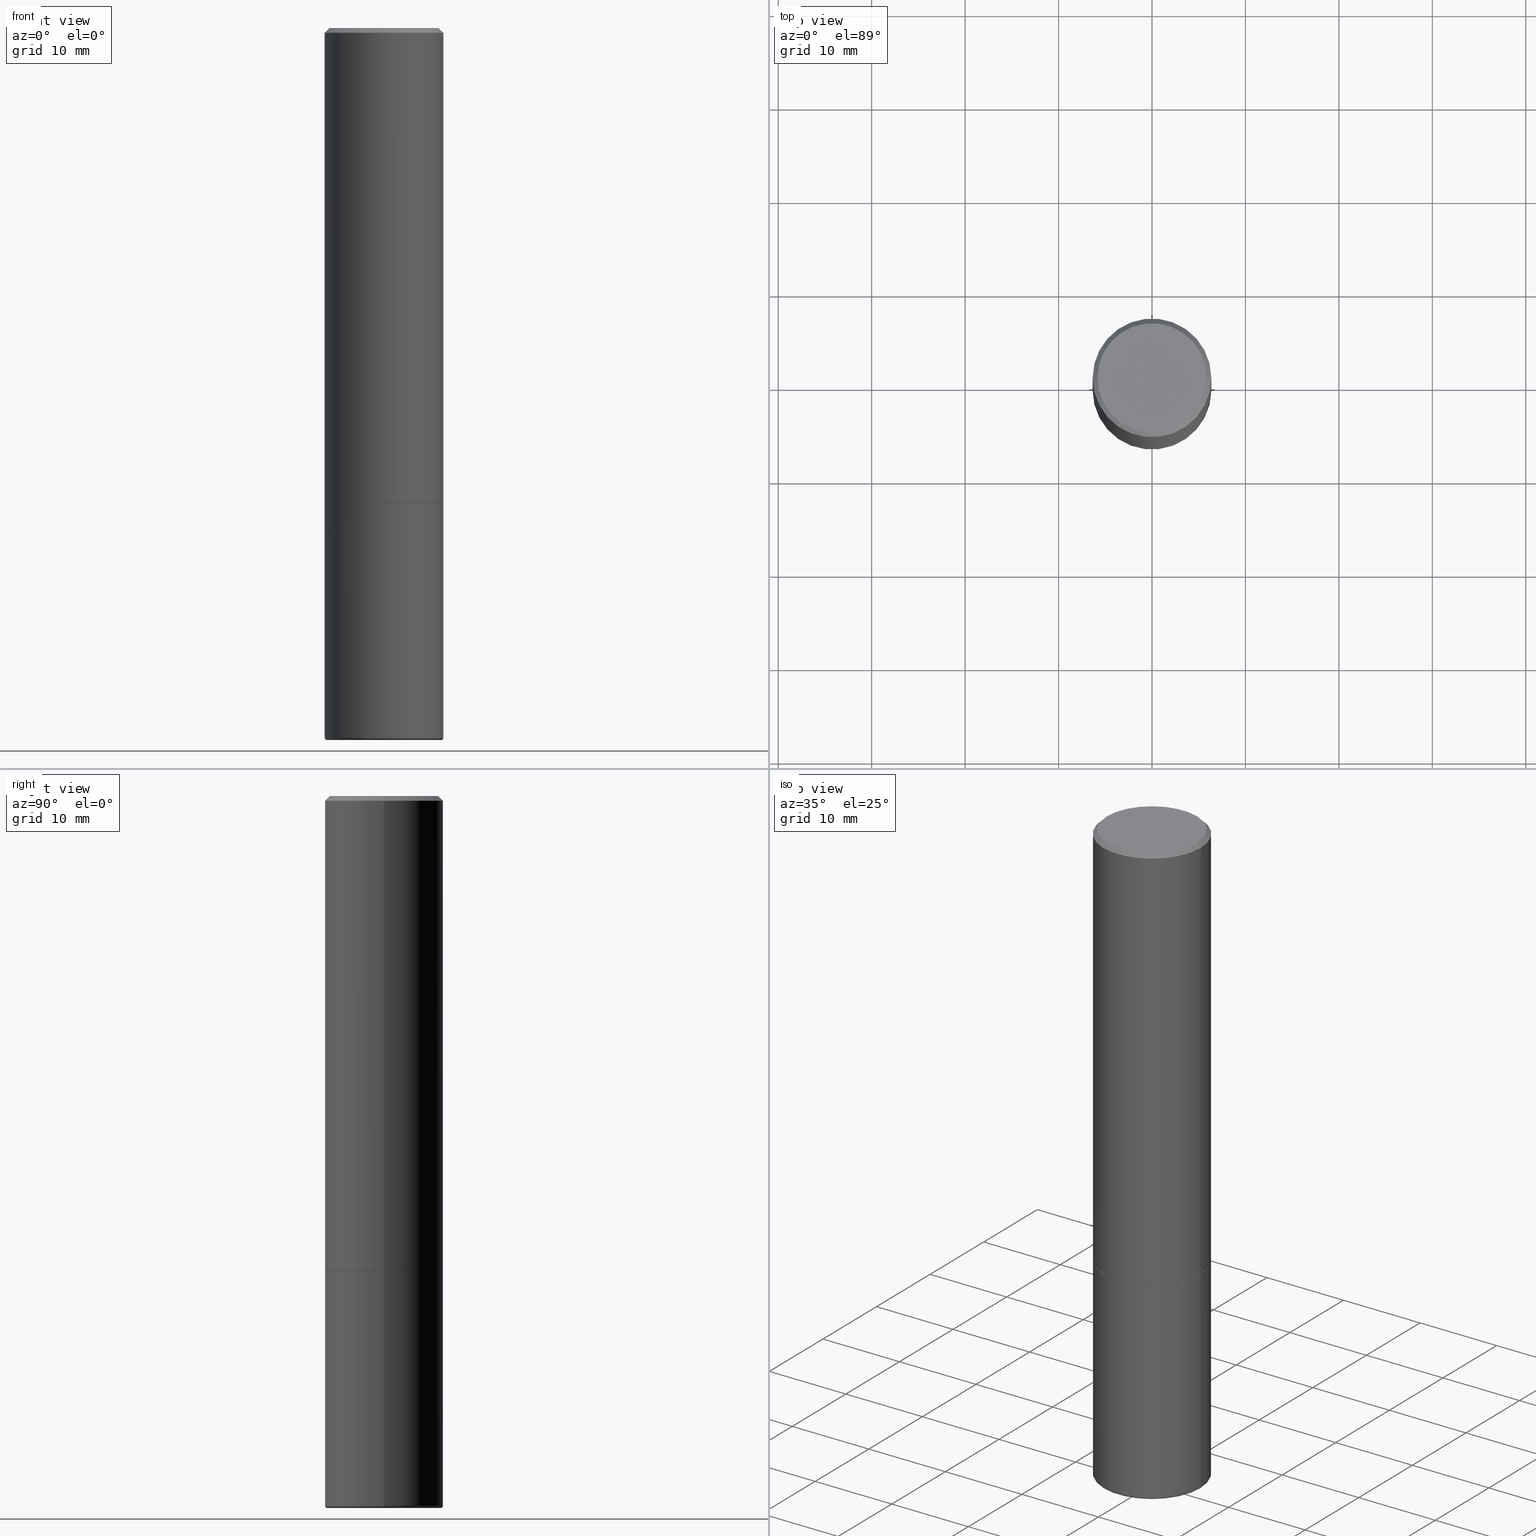
[diagram: canonical four-view strip — front | top / right | iso, engineering-drawing reading convention]
A machine part, canonical four-view strip (front | top / right | iso — engineering-drawing reading convention). The complete STEP part file that produces these views, byte-faithful:
ISO-10303-21;
HEADER;
FILE_DESCRIPTION (( 'STEP AP203' ),
    '1' );
FILE_NAME ('38837.STEP',
    '2024-03-03T16:03:18',
    ( '' ),
    ( '' ),
    'SwSTEP 2.0',
    'SolidWorks 2023',
    '' );
FILE_SCHEMA (( 'CONFIG_CONTROL_DESIGN' ));
ENDSEC;

DATA;
#1 =( NAMED_UNIT ( * ) SI_UNIT ( $, .STERADIAN. ) SOLID_ANGLE_UNIT ( ) );
#2 = CARTESIAN_POINT ( 'NONE',  ( 0.000000000000000000, 0.000000000000000000, 0.000000000000000000 ) ) ;
#3 = PERSON_AND_ORGANIZATION_ROLE ( 'creator' ) ;
#4 = ADVANCED_FACE ( 'NONE', ( #67 ), #99, .T. ) ;
#5 = FACE_OUTER_BOUND ( 'NONE', #326, .T. ) ;
#6 = ADVANCED_FACE ( 'NONE', ( #5 ), #322, .T. ) ;
#7 = APPROVAL_ROLE ( '' ) ;
#8 = AXIS2_PLACEMENT_3D ( 'NONE', #212, #208, #338 ) ;
#9 = AXIS2_PLACEMENT_3D ( 'NONE', #222, #315, #26 ) ;
#10 = APPROVAL_ROLE ( '' ) ;
#11 = UNCERTAINTY_MEASURE_WITH_UNIT (LENGTH_MEASURE( 1.000000000000000082E-05 ), #250, 'distance_accuracy_value', 'NONE');
#12 = DIRECTION ( 'NONE',  ( 1.000000000000000000, -6.982962677686267499E-15, 4.875813741439101456E-29 ) ) ;
#13 = DIRECTION ( 'NONE',  ( -1.000000000000000000, 7.105427357600978193E-15, 0.000000000000000000 ) ) ;
#14 = CLOSED_SHELL ( 'NONE', ( #387, #261, #176, #141, #330, #268, #17, #123 ) ) ;
#15 = APPROVAL_PERSON_ORGANIZATION ( #361, #321, #201 ) ;
#16 = DIRECTION ( 'NONE',  ( 1.000000000000000000, -6.982962677686284854E-15, 0.000000000000000000 ) ) ;
#17 = ADVANCED_FACE ( 'NONE', ( #134 ), #356, .F. ) ;
#18 = DIRECTION ( 'NONE',  ( -2.445468806185136597E-29, 3.491481338843145583E-15, 1.000000000000000000 ) ) ;
#19 = DIRECTION ( 'NONE',  ( -0.7071067811865467956, 2.468850131082249172E-15, -0.7071067811865482389 ) ) ;
#20 = CONICAL_SURFACE ( 'NONE', #104, 0.2500000000000000000, 0.7853981633974472798 ) ;
#21 = ORIENTED_EDGE ( 'NONE', *, *, #120, .T. ) ;
#22 = DIRECTION ( 'NONE',  ( 0.7071067811866078578, -2.468850131082888544E-15, 0.7071067811864871766 ) ) ;
#23 = ORIENTED_EDGE ( 'NONE', *, *, #77, .F. ) ;
#24 = DIRECTION ( 'NONE',  ( -2.445468806185136597E-29, 3.491481338843145583E-15, 1.000000000000000000 ) ) ;
#25 = VERTEX_POINT ( 'NONE', #194 ) ;
#26 = DIRECTION ( 'NONE',  ( 1.000000000000000000, -6.982962677686266711E-15, 0.000000000000000000 ) ) ;
#27 = ORIENTED_EDGE ( 'NONE', *, *, #206, .F. ) ;
#28 = CIRCLE ( 'NONE', #110, 0.2400000000000000466 ) ;
#29 = ADVANCED_FACE ( 'NONE', ( #37 ), #286, .F. ) ;
#30 = ORIENTED_EDGE ( 'NONE', *, *, #92, .T. ) ;
#31 = CARTESIAN_POINT ( 'NONE',  ( -0.2500000000000000000, 1.675911042644703577E-15, -0.02000000000000005593 ) ) ;
#32 = EDGE_CURVE ( 'NONE', #94, #155, #391, .T. ) ;
#33 = CARTESIAN_POINT ( 'NONE',  ( 1.210550456377282398E-28, -3.644824032368776532E-15, -2.999999999999999556 ) ) ;
#34 = DIRECTION ( 'NONE',  ( 1.000000000000000000, -6.982962677686266711E-15, 0.000000000000000000 ) ) ;
#35 = COORDINATED_UNIVERSAL_TIME_OFFSET ( 5, 0, .BEHIND. ) ;
#36 = VECTOR ( 'NONE', #22, 39.37007874015748143 ) ;
#37 = FACE_OUTER_BOUND ( 'NONE', #346, .T. ) ;
#38 = DATE_AND_TIME ( #163, #231 ) ;
#39 = DIRECTION ( 'NONE',  ( -2.438088387897960049E-29, 3.491481338843145188E-15, 1.000000000000000000 ) ) ;
#40 = DATE_AND_TIME ( #140, #73 ) ;
#41 = CC_DESIGN_DATE_AND_TIME_ASSIGNMENT ( #291, #232, ( #297 ) ) ;
#42 = EDGE_CURVE ( 'NONE', #319, #191, #365, .T. ) ;
#43 = CARTESIAN_POINT ( 'NONE',  ( 1.606081415867840870E-15, 0.2299999999999999267, -7.795638892383710465E-16 ) ) ;
#44 = CARTESIAN_POINT ( 'NONE',  ( 0.2400000000000000466, -1.215035505917413973E-14, -2.999999999999999556 ) ) ;
#45 = AXIS2_PLACEMENT_3D ( 'NONE', #418, #259, #168 ) ;
#46 = LOCAL_TIME ( 11, 3, 18.00000000000000000, #327 ) ;
#47 = LINE ( 'NONE', #235, #115 ) ;
#48 = DIRECTION ( 'NONE',  ( 7.105427357601001859E-15, 1.000000000000000000, -3.491481338843145583E-15 ) ) ;
#49 = CC_DESIGN_PERSON_AND_ORGANIZATION_ASSIGNMENT ( #107, #68, ( #215 ) ) ;
#50 = DIRECTION ( 'NONE',  ( 1.000000000000000000, -6.982962677686269077E-15, 4.883557194083114022E-29 ) ) ;
#51 = ORIENTED_EDGE ( 'NONE', *, *, #211, .F. ) ;
#52 = DIRECTION ( 'NONE',  ( -2.445468806185136597E-29, 3.491481338843145583E-15, 1.000000000000000000 ) ) ;
#53 = ADVANCED_FACE ( 'NONE', ( #164 ), #290, .T. ) ;
#54 = ORIENTED_EDGE ( 'NONE', *, *, #355, .T. ) ;
#55 = CARTESIAN_POINT ( 'NONE',  ( 0.2489999999999999991, -8.721720384430172617E-15, -2.000000000000000444 ) ) ;
#56 = VERTEX_POINT ( 'NONE', #173 ) ;
#57 = APPROVAL ( #294, 'UNSPECIFIED' ) ;
#58 = ORIENTED_EDGE ( 'NONE', *, *, #200, .F. ) ;
#59 = AXIS2_PLACEMENT_3D ( 'NONE', #33, #328, #227 ) ;
#60 = ORGANIZATION ( 'UNSPECIFIED', 'UNSPECIFIED', '' ) ;
#61 = CYLINDRICAL_SURFACE ( 'NONE', #188, 0.2500000000000001110 ) ;
#62 = EDGE_CURVE ( 'NONE', #129, #415, #178, .T. ) ;
#63 = ORIENTED_EDGE ( 'NONE', *, *, #96, .F. ) ;
#64 = DATE_AND_TIME ( #226, #46 ) ;
#65 = ORIENTED_EDGE ( 'NONE', *, *, #62, .T. ) ;
#66 = PERSON_AND_ORGANIZATION ( #296, #60 ) ;
#67 = FACE_OUTER_BOUND ( 'NONE', #243, .T. ) ;
#68 = PERSON_AND_ORGANIZATION_ROLE ( 'design_supplier' ) ;
#69 = ORIENTED_EDGE ( 'NONE', *, *, #193, .T. ) ;
#70 = APPROVAL_DATE_TIME ( #228, #408 ) ;
#71 = COORDINATED_UNIVERSAL_TIME_OFFSET ( 5, 0, .BEHIND. ) ;
#72 = AXIS2_PLACEMENT_3D ( 'NONE', #266, #402, #368 ) ;
#73 = LOCAL_TIME ( 11, 3, 18.00000000000000000, #357 ) ;
#74 = LINE ( 'NONE', #147, #102 ) ;
#75 = EDGE_CURVE ( 'NONE', #415, #25, #280, .T. ) ;
#76 = CARTESIAN_POINT ( 'NONE',  ( 7.311951730493558245E-29, -1.043952920314100628E-14, -2.990000000000000213 ) ) ;
#77 = EDGE_CURVE ( 'NONE', #160, #191, #74, .T. ) ;
#78 = MANIFOLD_SOLID_BREP ( 'Body-Move/Copy2[1]', #245 ) ;
#79 = DIRECTION ( 'NONE',  ( -1.000000000000000000, 6.982962677686266711E-15, 0.000000000000000000 ) ) ;
#80 = CC_DESIGN_PERSON_AND_ORGANIZATION_ASSIGNMENT ( #323, #3, ( #314 ) ) ;
#81 = CARTESIAN_POINT ( 'NONE',  ( -0.2489999999999999991, -5.208412811295419307E-15, -2.000000000000000444 ) ) ;
#82 = CARTESIAN_POINT ( 'NONE',  ( -1.148236555768741665E-45, 1.639377487418492057E-31, 4.695363739110452099E-17 ) ) ;
#83 = ORIENTED_EDGE ( 'NONE', *, *, #77, .T. ) ;
#84 = FACE_OUTER_BOUND ( 'NONE', #241, .T. ) ;
#85 = ADVANCED_FACE ( 'NONE', ( #205 ), #393, .T. ) ;
#86 = CIRCLE ( 'NONE', #144, 0.2500000000000002220 ) ;
#87 = ORIENTED_EDGE ( 'NONE', *, *, #200, .T. ) ;
#88 = CARTESIAN_POINT ( 'NONE',  ( 0.2489999999999999991, -8.721720384430172617E-15, -2.000000000000000444 ) ) ;
#89 = VERTEX_POINT ( 'NONE', #406 ) ;
#90 = CARTESIAN_POINT ( 'NONE',  ( -0.2500000000000000000, 1.776356839400250465E-15, -1.229733772563726445E-29 ) ) ;
#91 = ORIENTED_EDGE ( 'NONE', *, *, #75, .T. ) ;
#92 = EDGE_CURVE ( 'NONE', #375, #189, #262, .T. ) ;
#93 = DIRECTION ( 'NONE',  ( -0.7071067811866078578, 7.493145998870571886E-15, 0.7071067811864871766 ) ) ;
#94 = VERTEX_POINT ( 'NONE', #334 ) ;
#95 = DIRECTION ( 'NONE',  ( -2.445468806185136597E-29, 3.491481338843145583E-15, 1.000000000000000000 ) ) ;
#96 = EDGE_CURVE ( 'NONE', #94, #25, #187, .T. ) ;
#97 = ORIENTED_EDGE ( 'NONE', *, *, #206, .T. ) ;
#98 = MECHANICAL_CONTEXT ( 'NONE', #310, 'mechanical' ) ;
#99 = CYLINDRICAL_SURFACE ( 'NONE', #405, 0.2500000000000000000 ) ;
#100 = APPROVAL_STATUS ( 'not_yet_approved' ) ;
#101 = CARTESIAN_POINT ( 'NONE',  ( 0.2500000000000000000, -1.745740669421566678E-15, 1.219044193948983948E-29 ) ) ;
#102 = VECTOR ( 'NONE', #400, 39.37007874015748143 ) ;
#103 = PERSON_AND_ORGANIZATION ( #296, #60 ) ;
#104 = AXIS2_PLACEMENT_3D ( 'NONE', #265, #145, #79 ) ;
#105 = PRODUCT_RELATED_PRODUCT_CATEGORY ( 'detail', '', ( #359 ) ) ;
#106 = PERSON_AND_ORGANIZATION ( #296, #60 ) ;
#107 = PERSON_AND_ORGANIZATION ( #296, #60 ) ;
#108 = EDGE_CURVE ( 'NONE', #155, #56, #383, .T. ) ;
#109 = CARTESIAN_POINT ( 'NONE',  ( -0.2399999999999999911, -8.734226637316765899E-15, -2.990000000000000213 ) ) ;
#110 = AXIS2_PLACEMENT_3D ( 'NONE', #156, #275, #242 ) ;
#111 = ORIENTED_EDGE ( 'NONE', *, *, #180, .F. ) ;
#112 = CARTESIAN_POINT ( 'NONE',  ( 4.890937612370273754E-29, -6.982962677686291954E-15, -2.000000000000000444 ) ) ;
#113 = DIRECTION ( 'NONE',  ( -2.445468806185136597E-29, 3.491481338843145583E-15, 1.000000000000000000 ) ) ;
#114 = DIRECTION ( 'NONE',  ( 2.438088387897960049E-29, -3.491481338843145188E-15, -1.000000000000000000 ) ) ;
#115 = VECTOR ( 'NONE', #143, 39.37007874015748143 ) ;
#116 = CC_DESIGN_APPROVAL ( #408, ( #297 ) ) ;
#117 = FACE_OUTER_BOUND ( 'NONE', #218, .T. ) ;
#118 = ORIENTED_EDGE ( 'NONE', *, *, #180, .T. ) ;
#119 = CARTESIAN_POINT ( 'NONE',  ( 0.2500000000000000000, -1.784954126219746189E-15, -0.02000000000000005593 ) ) ;
#120 = EDGE_CURVE ( 'NONE', #127, #319, #47, .T. ) ;
#121 = ORIENTED_EDGE ( 'NONE', *, *, #120, .F. ) ;
#122 = DIRECTION ( 'NONE',  ( -2.445468806185136597E-29, 3.491481338843145583E-15, 1.000000000000000000 ) ) ;
#123 = ADVANCED_FACE ( 'NONE', ( #210 ), #267, .F. ) ;
#124 = LOCAL_TIME ( 11, 3, 18.00000000000000000, #293 ) ;
#125 = ORIENTED_EDGE ( 'NONE', *, *, #347, .T. ) ;
#126 = CARTESIAN_POINT ( 'NONE',  ( -0.2400000000000000466, -8.716156907222976683E-15, -2.999999999999999556 ) ) ;
#127 = VERTEX_POINT ( 'NONE', #175 ) ;
#128 = LENGTH_MEASURE_WITH_UNIT ( LENGTH_MEASURE( 0.02539999999999999897 ), #283 );
#129 = VERTEX_POINT ( 'NONE', #44 ) ;
#130 = DIRECTION ( 'NONE',  ( 1.000000000000000000, -6.982962677686269077E-15, 4.883557194083114022E-29 ) ) ;
#131 = EDGE_LOOP ( 'NONE', ( #274, #125, #278, #378 ) ) ;
#132 = AXIS2_PLACEMENT_3D ( 'NONE', #337, #239, #371 ) ;
#133 = APPROVAL_DATE_TIME ( #38, #57 ) ;
#134 = FACE_OUTER_BOUND ( 'NONE', #223, .T. ) ;
#135 = PERSON_AND_ORGANIZATION ( #296, #60 ) ;
#136 = DIRECTION ( 'NONE',  ( -2.445468806185136597E-29, 3.491481338843145583E-15, 1.000000000000000000 ) ) ;
#137 = APPLICATION_PROTOCOL_DEFINITION ( 'international standard', 'config_control_design', 1994, #333 ) ;
#138 = EDGE_CURVE ( 'NONE', #158, #191, #306, .T. ) ;
#139 = CONICAL_SURFACE ( 'NONE', #9, 0.2489999999999999991, 0.7853981633975336552 ) ;
#140 = CALENDAR_DATE ( 2024, 3, 3 ) ;
#141 = ADVANCED_FACE ( 'NONE', ( #117 ), #254, .T. ) ;
#142 = FACE_OUTER_BOUND ( 'NONE', #249, .T. ) ;
#143 = DIRECTION ( 'NONE',  ( -2.445468806185136877E-29, 3.491481338843145188E-15, 1.000000000000000000 ) ) ;
#144 = AXIS2_PLACEMENT_3D ( 'NONE', #417, #95, #411 ) ;
#145 = DIRECTION ( 'NONE',  ( 2.445468806185136597E-29, -3.491481338843145583E-15, -1.000000000000000000 ) ) ;
#146 = EDGE_CURVE ( 'NONE', #56, #155, #202, .T. ) ;
#147 = CARTESIAN_POINT ( 'NONE',  ( -0.2500000000000001110, 1.776356839400251254E-15, -1.229733772563727146E-29 ) ) ;
#148 = CARTESIAN_POINT ( 'NONE',  ( 7.336406418555408669E-29, -1.047444401652943478E-14, -2.999999999999999556 ) ) ;
#149 = CIRCLE ( 'NONE', #336, 0.2500000000000002220 ) ;
#150 = ORIENTED_EDGE ( 'NONE', *, *, #305, .T. ) ;
#151 = DIRECTION ( 'NONE',  ( 0.7071067811865467956, -7.319954787623254468E-15, -0.7071067811865482389 ) ) ;
#152 = EDGE_LOOP ( 'NONE', ( #23, #69, #21, #27 ) ) ;
#153 = EDGE_CURVE ( 'NONE', #129, #94, #172, .T. ) ;
#154 = CARTESIAN_POINT ( 'NONE',  ( -1.148236555768741665E-45, 1.639377487418492057E-31, 4.695363739110452099E-17 ) ) ;
#155 = VERTEX_POINT ( 'NONE', #300 ) ;
#156 = CARTESIAN_POINT ( 'NONE',  ( 7.336406418555408669E-29, -1.047444401652943478E-14, -2.999999999999999556 ) ) ;
#157 = VECTOR ( 'NONE', #93, 39.37007874015748143 ) ;
#158 = VERTEX_POINT ( 'NONE', #238 ) ;
#159 = CARTESIAN_POINT ( 'NONE',  ( 4.888492143564088712E-29, -6.979471196347448158E-15, -1.999000000000000110 ) ) ;
#160 = VERTEX_POINT ( 'NONE', #369 ) ;
#161 = LINE ( 'NONE', #88, #36 ) ;
#162 = CARTESIAN_POINT ( 'NONE',  ( 4.890937612370273754E-29, -6.982962677686291954E-15, -2.000000000000000444 ) ) ;
#163 = CALENDAR_DATE ( 2024, 3, 3 ) ;
#164 = FACE_OUTER_BOUND ( 'NONE', #131, .T. ) ;
#165 = VECTOR ( 'NONE', #19, 39.37007874015748143 ) ;
#166 = EDGE_CURVE ( 'NONE', #158, #89, #309, .T. ) ;
#167 = CALENDAR_DATE ( 2024, 3, 3 ) ;
#168 = DIRECTION ( 'NONE',  ( -1.000000000000000000, 6.982962677686265922E-15, -4.876176775795935793E-29 ) ) ;
#169 = SECURITY_CLASSIFICATION_LEVEL ( 'unclassified' ) ;
#170 = CARTESIAN_POINT ( 'NONE',  ( 0.2399999999999999911, -1.211544024578571124E-14, -2.990000000000000213 ) ) ;
#171 = DIRECTION ( 'NONE',  ( 1.000000000000000000, -6.982962677686266711E-15, 0.000000000000000000 ) ) ;
#172 = CIRCLE ( 'NONE', #179, 0.009999999999999790307 ) ;
#173 = CARTESIAN_POINT ( 'NONE',  ( -0.2500000000000000000, -6.934889101013398653E-15, -2.000000000000000444 ) ) ;
#174 = CC_DESIGN_PERSON_AND_ORGANIZATION_ASSIGNMENT ( #103, #298, ( #297 ) ) ;
#175 = CARTESIAN_POINT ( 'NONE',  ( 0.2500000000000002220, -8.725211865769017202E-15, -1.999000000000000110 ) ) ;
#176 = ADVANCED_FACE ( 'NONE', ( #142 ), #20, .T. ) ;
#177 = DIRECTION ( 'NONE',  ( 1.000000000000000000, -6.982962677686267499E-15, 4.876176775795936353E-29 ) ) ;
#178 = CIRCLE ( 'NONE', #301, 0.2400000000000000466 ) ;
#179 = AXIS2_PLACEMENT_3D ( 'NONE', #170, #372, #16 ) ;
#180 = EDGE_CURVE ( 'NONE', #189, #375, #318, .T. ) ;
#181 = ORIENTED_EDGE ( 'NONE', *, *, #364, .F. ) ;
#182 = DIRECTION ( 'NONE',  ( 1.000000000000000000, -6.982962677686268288E-15, 0.000000000000000000 ) ) ;
#183 = EDGE_LOOP ( 'NONE', ( #340, #54, #412, #251 ) ) ;
#184 = CARTESIAN_POINT ( 'NONE',  ( -0.2489999999999999991, -5.213711265643642498E-15, -2.000000000000000444 ) ) ;
#185 = ORIENTED_EDGE ( 'NONE', *, *, #108, .F. ) ;
#186 = DIRECTION ( 'NONE',  ( -2.445468806185136597E-29, 3.491481338843145583E-15, 1.000000000000000000 ) ) ;
#187 = CIRCLE ( 'NONE', #8, 0.2500000000000000000 ) ;
#188 = AXIS2_PLACEMENT_3D ( 'NONE', #285, #190, #177 ) ;
#189 = VERTEX_POINT ( 'NONE', #81 ) ;
#190 = DIRECTION ( 'NONE',  ( -2.445468806185136597E-29, 3.491481338843145583E-15, 1.000000000000000000 ) ) ;
#191 = VERTEX_POINT ( 'NONE', #31 ) ;
#192 = APPLICATION_PROTOCOL_DEFINITION ( 'international standard', 'config_control_design', 1994, #310 ) ;
#193 = EDGE_CURVE ( 'NONE', #160, #127, #149, .T. ) ;
#194 = CARTESIAN_POINT ( 'NONE',  ( -0.2499999999999998890, -8.663172363740755817E-15, -2.990000000000000213 ) ) ;
#195 = PERSON_AND_ORGANIZATION_ROLE ( 'design_owner' ) ;
#196 = EDGE_LOOP ( 'NONE', ( #385, #352 ) ) ;
#197 = AXIS2_PLACEMENT_3D ( 'NONE', #154, #122, #345 ) ;
#198 = DIRECTION ( 'NONE',  ( 1.000000000000000000, -6.982962677686266711E-15, 4.876176775795935793E-29 ) ) ;
#199 = DATE_TIME_ROLE ( 'creation_date' ) ;
#200 = EDGE_CURVE ( 'NONE', #189, #160, #248, .T. ) ;
#201 = APPROVAL_ROLE ( '' ) ;
#202 = CIRCLE ( 'NONE', #307, 0.2500000000000000000 ) ;
#203 = VECTOR ( 'NONE', #279, 39.37007874015748143 ) ;
#204 = DIRECTION ( 'NONE',  ( 1.000000000000000000, -6.982962677686266711E-15, 0.000000000000000000 ) ) ;
#205 = FACE_OUTER_BOUND ( 'NONE', #183, .T. ) ;
#206 = EDGE_CURVE ( 'NONE', #191, #319, #234, .T. ) ;
#207 = AXIS2_PLACEMENT_3D ( 'NONE', #76, #299, #50 ) ;
#208 = DIRECTION ( 'NONE',  ( -2.445468806185136597E-29, 3.491481338843145583E-15, 1.000000000000000000 ) ) ;
#209 = AXIS2_PLACEMENT_3D ( 'NONE', #224, #186, #253 ) ;
#210 = FACE_OUTER_BOUND ( 'NONE', #196, .T. ) ;
#211 = EDGE_CURVE ( 'NONE', #375, #127, #161, .T. ) ;
#212 = CARTESIAN_POINT ( 'NONE',  ( 7.311951730493558245E-29, -1.043952920314100628E-14, -2.990000000000000213 ) ) ;
#213 = ORIENTED_EDGE ( 'NONE', *, *, #166, .F. ) ;
#214 = CYLINDRICAL_SURFACE ( 'NONE', #394, 0.2500000000000001110 ) ;
#215 = PRODUCT_DEFINITION_FORMATION_WITH_SPECIFIED_SOURCE ( 'ANY', '', #359, .NOT_KNOWN. ) ;
#216 = ORIENTED_EDGE ( 'NONE', *, *, #42, .F. ) ;
#217 = DIRECTION ( 'NONE',  ( 1.000000000000000000, -6.982962677686262766E-15, 0.000000000000000000 ) ) ;
#218 = EDGE_LOOP ( 'NONE', ( #220, #213, #407, #97 ) ) ;
#219 = DIRECTION ( 'NONE',  ( -2.445468806185136597E-29, 3.491481338843145583E-15, 1.000000000000000000 ) ) ;
#220 = ORIENTED_EDGE ( 'NONE', *, *, #305, .F. ) ;
#221 = ADVANCED_BREP_SHAPE_REPRESENTATION ( '38837', ( #78, #362, #399 ), #263 ) ;
#222 = CARTESIAN_POINT ( 'NONE',  ( 4.890937612370273754E-29, -6.982962677686291954E-15, -2.000000000000000444 ) ) ;
#223 = EDGE_LOOP ( 'NONE', ( #349, #111 ) ) ;
#224 = CARTESIAN_POINT ( 'NONE',  ( 4.890937612370273754E-29, -6.982962677686291954E-15, -2.000000000000000444 ) ) ;
#225 = ORIENTED_EDGE ( 'NONE', *, *, #62, .F. ) ;
#226 = CALENDAR_DATE ( 2024, 3, 3 ) ;
#227 = DIRECTION ( 'NONE',  ( -1.000000000000000000, 6.982962677686265922E-15, -4.876176775795935793E-29 ) ) ;
#228 = DATE_AND_TIME ( #260, #124 ) ;
#229 = AXIS2_PLACEMENT_3D ( 'NONE', #162, #39, #292 ) ;
#230 = CARTESIAN_POINT ( 'NONE',  ( 0.000000000000000000, 0.000000000000000000, 0.000000000000000000 ) ) ;
#231 = LOCAL_TIME ( 11, 3, 18.00000000000000000, #71 ) ;
#232 = DATE_TIME_ROLE ( 'classification_date' ) ;
#233 = AXIS2_PLACEMENT_3D ( 'NONE', #2, #257, #339 ) ;
#234 = CIRCLE ( 'NONE', #343, 0.2500000000000000000 ) ;
#235 = CARTESIAN_POINT ( 'NONE',  ( 0.2500000000000001110, -1.745740669421567664E-15, 1.219044193948984649E-29 ) ) ;
#236 = ADVANCED_FACE ( 'NONE', ( #320 ), #370, .T. ) ;
#237 = CARTESIAN_POINT ( 'NONE',  ( -0.2500000000000000000, 1.675911042644703577E-15, -0.02000000000000005593 ) ) ;
#238 = CARTESIAN_POINT ( 'NONE',  ( -0.2299999999999999267, 1.640996229256272519E-15, 4.695363739109317495E-17 ) ) ;
#239 = DIRECTION ( 'NONE',  ( -2.445468806185136597E-29, 3.491481338843145583E-15, 1.000000000000000000 ) ) ;
#240 = CARTESIAN_POINT ( 'NONE',  ( 4.890937612370273754E-29, -6.982962677686291954E-15, -2.000000000000000444 ) ) ;
#241 = EDGE_LOOP ( 'NONE', ( #316, #83, #216, #121 ) ) ;
#242 = DIRECTION ( 'NONE',  ( 1.000000000000000000, -6.982962677686266711E-15, 0.000000000000000000 ) ) ;
#243 = EDGE_LOOP ( 'NONE', ( #344, #284, #185, #416 ) ) ;
#244 = DIRECTION ( 'NONE',  ( -2.445468806185136597E-29, 3.491481338843145583E-15, 1.000000000000000000 ) ) ;
#245 = CLOSED_SHELL ( 'NONE', ( #4, #236, #29, #53, #85, #6 ) ) ;
#246 = AXIS2_PLACEMENT_3D ( 'NONE', #82, #113, #12 ) ;
#247 = ORIENTED_EDGE ( 'NONE', *, *, #355, .F. ) ;
#248 = LINE ( 'NONE', #184, #157 ) ;
#249 = EDGE_LOOP ( 'NONE', ( #181, #150, #271, #360 ) ) ;
#250 =( CONVERSION_BASED_UNIT ( 'INCH', #128 ) LENGTH_UNIT ( ) NAMED_UNIT ( #264 ) );
#251 = ORIENTED_EDGE ( 'NONE', *, *, #347, .F. ) ;
#252 = EDGE_CURVE ( 'NONE', #127, #160, #86, .T. ) ;
#253 = DIRECTION ( 'NONE',  ( 1.000000000000000000, -6.982962677686266711E-15, 0.000000000000000000 ) ) ;
#254 = CONICAL_SURFACE ( 'NONE', #72, 0.2500000000000000000, 0.7853981633974472798 ) ;
#255 = CC_DESIGN_APPROVAL ( #57, ( #314 ) ) ;
#256 = CARTESIAN_POINT ( 'NONE',  ( 4.890937612370287172E-31, -6.982962677686310098E-17, -0.02000000000000005593 ) ) ;
#257 = DIRECTION ( 'NONE',  ( -2.445468806185136597E-29, 3.491481338843145583E-15, 1.000000000000000000 ) ) ;
#258 = PERSON_AND_ORGANIZATION ( #296, #60 ) ;
#259 = DIRECTION ( 'NONE',  ( 2.438088387897960049E-29, -3.491481338843145188E-15, -1.000000000000000000 ) ) ;
#260 = CALENDAR_DATE ( 2024, 3, 3 ) ;
#261 = ADVANCED_FACE ( 'NONE', ( #84 ), #61, .T. ) ;
#262 = CIRCLE ( 'NONE', #317, 0.2489999999999999991 ) ;
#263 =( GEOMETRIC_REPRESENTATION_CONTEXT ( 3 ) GLOBAL_UNCERTAINTY_ASSIGNED_CONTEXT ( ( #11 ) ) GLOBAL_UNIT_ASSIGNED_CONTEXT ( ( #250, #363, #1 ) ) REPRESENTATION_CONTEXT ( 'NONE', 'WORKASPACE' ) );
#264 = DIMENSIONAL_EXPONENTS ( 1.000000000000000000, 0.000000000000000000, 0.000000000000000000, 0.000000000000000000, 0.000000000000000000, 0.000000000000000000, 0.000000000000000000 ) ;
#265 = CARTESIAN_POINT ( 'NONE',  ( 4.890937612370287172E-31, -6.982962677686310098E-17, -0.02000000000000005593 ) ) ;
#266 = CARTESIAN_POINT ( 'NONE',  ( 4.890937612370287172E-31, -6.982962677686310098E-17, -0.02000000000000005593 ) ) ;
#267 = PLANE ( 'NONE',  #341 ) ;
#268 = ADVANCED_FACE ( 'NONE', ( #374 ), #358, .T. ) ;
#269 = DIRECTION ( 'NONE',  ( -2.445468806185136597E-29, 3.491481338843145583E-15, 1.000000000000000000 ) ) ;
#270 = CC_DESIGN_DATE_AND_TIME_ASSIGNMENT ( #64, #199, ( #314 ) ) ;
#271 = ORIENTED_EDGE ( 'NONE', *, *, #42, .T. ) ;
#272 = DIRECTION ( 'NONE',  ( 1.000000000000000000, -6.982962677686266711E-15, 0.000000000000000000 ) ) ;
#273 = VECTOR ( 'NONE', #151, 39.37007874015748143 ) ;
#274 = ORIENTED_EDGE ( 'NONE', *, *, #401, .F. ) ;
#275 = DIRECTION ( 'NONE',  ( -2.445468806185136597E-29, 3.491481338843145583E-15, 1.000000000000000000 ) ) ;
#276 = ORIENTED_EDGE ( 'NONE', *, *, #193, .F. ) ;
#277 = DIRECTION ( 'NONE',  ( -2.445468806185136597E-29, 3.491481338843145583E-15, 1.000000000000000000 ) ) ;
#278 = ORIENTED_EDGE ( 'NONE', *, *, #32, .T. ) ;
#279 = DIRECTION ( 'NONE',  ( -2.445468806185136877E-29, 3.491481338843145188E-15, 1.000000000000000000 ) ) ;
#280 = CIRCLE ( 'NONE', #288, 0.009999999999999790307 ) ;
#281 = CC_DESIGN_APPROVAL ( #321, ( #215 ) ) ;
#282 = ORIENTED_EDGE ( 'NONE', *, *, #108, .T. ) ;
#283 =( LENGTH_UNIT ( ) NAMED_UNIT ( * ) SI_UNIT ( $, .METRE. ) );
#284 = ORIENTED_EDGE ( 'NONE', *, *, #401, .T. ) ;
#285 = CARTESIAN_POINT ( 'NONE',  ( 0.000000000000000000, 0.000000000000000000, 0.000000000000000000 ) ) ;
#286 = PLANE ( 'NONE',  #45 ) ;
#287 = PERSON_AND_ORGANIZATION_ROLE ( 'creator' ) ;
#288 = AXIS2_PLACEMENT_3D ( 'NONE', #109, #48, #13 ) ;
#289 = CIRCLE ( 'NONE', #332, 0.2500000000000000000 ) ;
#290 = CYLINDRICAL_SURFACE ( 'NONE', #233, 0.2500000000000000000 ) ;
#291 = DATE_AND_TIME ( #167, #302 ) ;
#292 = DIRECTION ( 'NONE',  ( 1.000000000000000000, -6.982962677686265922E-15, 4.876176775795935793E-29 ) ) ;
#293 = COORDINATED_UNIVERSAL_TIME_OFFSET ( 5, 0, .BEHIND. ) ;
#294 = APPROVAL_STATUS ( 'not_yet_approved' ) ;
#295 = AXIS2_PLACEMENT_3D ( 'NONE', #303, #18, #272 ) ;
#296 = PERSON ( 'UNSPECIFIED', 'UNSPECIFIED', 'UNSPECIFIED', ('UNSPECIFIED'), ('UNSPECIFIED'), ('UNSPECIFIED') ) ;
#297 = SECURITY_CLASSIFICATION ( '', '', #169 ) ;
#298 = PERSON_AND_ORGANIZATION_ROLE ( 'classification_officer' ) ;
#299 = DIRECTION ( 'NONE',  ( -2.445468806185136597E-29, 3.491481338843145583E-15, 1.000000000000000000 ) ) ;
#300 = CARTESIAN_POINT ( 'NONE',  ( 0.2500000000000000000, -8.728703347107858632E-15, -2.000000000000000444 ) ) ;
#301 = AXIS2_PLACEMENT_3D ( 'NONE', #148, #397, #404 ) ;
#302 = LOCAL_TIME ( 11, 3, 18.00000000000000000, #35 ) ;
#303 = CARTESIAN_POINT ( 'NONE',  ( 4.890937612370273754E-29, -6.982962677686291954E-15, -2.000000000000000444 ) ) ;
#304 = DIRECTION ( 'NONE',  ( -2.445468806185136597E-29, 3.491481338843145583E-15, 1.000000000000000000 ) ) ;
#305 = EDGE_CURVE ( 'NONE', #89, #319, #382, .T. ) ;
#306 = LINE ( 'NONE', #237, #165 ) ;
#307 = AXIS2_PLACEMENT_3D ( 'NONE', #240, #304, #171 ) ;
#308 = CARTESIAN_POINT ( 'NONE',  ( 0.2500000000000000000, -1.784954126219746189E-15, -0.02000000000000005593 ) ) ;
#309 = CIRCLE ( 'NONE', #246, 0.2299999999999999267 ) ;
#310 = APPLICATION_CONTEXT ( 'configuration controlled 3d designs of mechanical parts and assemblies' ) ;
#311 = ORIENTED_EDGE ( 'NONE', *, *, #153, .F. ) ;
#312 = DIRECTION ( 'NONE',  ( 1.000000000000000000, -6.982962677686267499E-15, 4.876176775795936353E-29 ) ) ;
#313 = ORIENTED_EDGE ( 'NONE', *, *, #211, .T. ) ;
#314 = PRODUCT_DEFINITION ( 'UNKNOWN', '', #215, #367 ) ;
#315 = DIRECTION ( 'NONE',  ( -2.445468806185136597E-29, 3.491481338843145583E-15, 1.000000000000000000 ) ) ;
#316 = ORIENTED_EDGE ( 'NONE', *, *, #252, .T. ) ;
#317 = AXIS2_PLACEMENT_3D ( 'NONE', #112, #269, #204 ) ;
#318 = CIRCLE ( 'NONE', #132, 0.2489999999999999991 ) ;
#319 = VERTEX_POINT ( 'NONE', #119 ) ;
#320 = FACE_OUTER_BOUND ( 'NONE', #380, .T. ) ;
#321 = APPROVAL ( #325, 'UNSPECIFIED' ) ;
#322 = PLANE ( 'NONE',  #59 ) ;
#323 = PERSON_AND_ORGANIZATION ( #296, #60 ) ;
#324 = DIRECTION ( 'NONE',  ( -2.445468806185136597E-29, 3.491481338843145583E-15, 1.000000000000000000 ) ) ;
#325 = APPROVAL_STATUS ( 'not_yet_approved' ) ;
#326 = EDGE_LOOP ( 'NONE', ( #225, #247 ) ) ;
#327 = COORDINATED_UNIVERSAL_TIME_OFFSET ( 5, 0, .BEHIND. ) ;
#328 = DIRECTION ( 'NONE',  ( 2.438088387897960049E-29, -3.491481338843145188E-15, -1.000000000000000000 ) ) ;
#329 = DIRECTION ( 'NONE',  ( 0.000000000000000000, 0.000000000000000000, 1.000000000000000000 ) ) ;
#330 = ADVANCED_FACE ( 'NONE', ( #348 ), #214, .T. ) ;
#331 = AXIS2_PLACEMENT_3D ( 'NONE', #256, #324, #34 ) ;
#332 = AXIS2_PLACEMENT_3D ( 'NONE', #379, #24, #217 ) ;
#333 = APPLICATION_CONTEXT ( 'configuration controlled 3d designs of mechanical parts and assemblies' ) ;
#334 = CARTESIAN_POINT ( 'NONE',  ( 0.2499999999999998890, -1.218526987256257138E-14, -2.990000000000000213 ) ) ;
#335 = DIRECTION ( 'NONE',  ( -1.000000000000000000, 6.982962677686265922E-15, -4.876176775795935793E-29 ) ) ;
#336 = AXIS2_PLACEMENT_3D ( 'NONE', #159, #219, #182 ) ;
#337 = CARTESIAN_POINT ( 'NONE',  ( 4.890937612370273754E-29, -6.982962677686291954E-15, -2.000000000000000444 ) ) ;
#338 = DIRECTION ( 'NONE',  ( 1.000000000000000000, -6.982962677686262766E-15, 0.000000000000000000 ) ) ;
#339 = DIRECTION ( 'NONE',  ( 1.000000000000000000, -6.982962677686266711E-15, 4.876176775795935793E-29 ) ) ;
#340 = ORIENTED_EDGE ( 'NONE', *, *, #75, .F. ) ;
#341 = AXIS2_PLACEMENT_3D ( 'NONE', #43, #114, #335 ) ;
#342 = CARTESIAN_POINT ( 'NONE',  ( 0.000000000000000000, 0.000000000000000000, 0.000000000000000000 ) ) ;
#343 = AXIS2_PLACEMENT_3D ( 'NONE', #353, #244, #376 ) ;
#344 = ORIENTED_EDGE ( 'NONE', *, *, #96, .T. ) ;
#345 = DIRECTION ( 'NONE',  ( 1.000000000000000000, -6.982962677686267499E-15, 4.875813741439101456E-29 ) ) ;
#346 = EDGE_LOOP ( 'NONE', ( #282, #410 ) ) ;
#347 = EDGE_CURVE ( 'NONE', #25, #94, #289, .T. ) ;
#348 = FACE_OUTER_BOUND ( 'NONE', #152, .T. ) ;
#349 = ORIENTED_EDGE ( 'NONE', *, *, #92, .F. ) ;
#350 = FACE_OUTER_BOUND ( 'NONE', #388, .T. ) ;
#351 = CC_DESIGN_SECURITY_CLASSIFICATION ( #297, ( #215 ) ) ;
#352 = ORIENTED_EDGE ( 'NONE', *, *, #364, .T. ) ;
#353 = CARTESIAN_POINT ( 'NONE',  ( 4.890937612370287172E-31, -6.982962677686310098E-17, -0.02000000000000005593 ) ) ;
#354 = DIRECTION ( 'NONE',  ( -2.445468806185136877E-29, 3.491481338843145188E-15, 1.000000000000000000 ) ) ;
#355 = EDGE_CURVE ( 'NONE', #415, #129, #28, .T. ) ;
#356 = PLANE ( 'NONE',  #229 ) ;
#357 = COORDINATED_UNIVERSAL_TIME_OFFSET ( 5, 0, .BEHIND. ) ;
#358 = CONICAL_SURFACE ( 'NONE', #209, 0.2489999999999999991, 0.7853981633975336552 ) ;
#359 = PRODUCT ( '38837', '38837', '', ( #98 ) ) ;
#360 = ORIENTED_EDGE ( 'NONE', *, *, #138, .F. ) ;
#361 = PERSON_AND_ORGANIZATION ( #296, #60 ) ;
#362 = MANIFOLD_SOLID_BREP ( 'Body-Move/Copy2[2]', #14 ) ;
#363 =( NAMED_UNIT ( * ) PLANE_ANGLE_UNIT ( ) SI_UNIT ( $, .RADIAN. ) );
#364 = EDGE_CURVE ( 'NONE', #89, #158, #377, .T. ) ;
#365 = CIRCLE ( 'NONE', #331, 0.2500000000000000000 ) ;
#366 = APPROVAL_PERSON_ORGANIZATION ( #135, #408, #7 ) ;
#367 = DESIGN_CONTEXT ( 'detailed design', #333, 'design' ) ;
#368 = DIRECTION ( 'NONE',  ( -1.000000000000000000, 6.982962677686266711E-15, 0.000000000000000000 ) ) ;
#369 = CARTESIAN_POINT ( 'NONE',  ( -0.2500000000000002220, -1.748293572161901516E-15, -1.999000000000000110 ) ) ;
#370 = TOROIDAL_SURFACE ( 'NONE', #384, 0.2399999999999999911, 0.009999999999999807654 ) ;
#371 = DIRECTION ( 'NONE',  ( 1.000000000000000000, -6.982962677686266711E-15, 0.000000000000000000 ) ) ;
#372 = DIRECTION ( 'NONE',  ( -6.982962677686266711E-15, -1.000000000000000000, 3.491481338843145583E-15 ) ) ;
#373 = ORIENTED_EDGE ( 'NONE', *, *, #252, .F. ) ;
#374 = FACE_OUTER_BOUND ( 'NONE', #381, .T. ) ;
#375 = VERTEX_POINT ( 'NONE', #55 ) ;
#376 = DIRECTION ( 'NONE',  ( 1.000000000000000000, -6.982962677686266711E-15, 0.000000000000000000 ) ) ;
#377 = CIRCLE ( 'NONE', #197, 0.2299999999999999267 ) ;
#378 = ORIENTED_EDGE ( 'NONE', *, *, #146, .F. ) ;
#379 = CARTESIAN_POINT ( 'NONE',  ( 7.311951730493558245E-29, -1.043952920314100628E-14, -2.990000000000000213 ) ) ;
#380 = EDGE_LOOP ( 'NONE', ( #65, #91, #63, #311 ) ) ;
#381 = EDGE_LOOP ( 'NONE', ( #58, #118, #313, #276 ) ) ;
#382 = LINE ( 'NONE', #308, #273 ) ;
#383 = CIRCLE ( 'NONE', #295, 0.2500000000000000000 ) ;
#384 = AXIS2_PLACEMENT_3D ( 'NONE', #409, #277, #130 ) ;
#385 = ORIENTED_EDGE ( 'NONE', *, *, #166, .T. ) ;
#386 = CARTESIAN_POINT ( 'NONE',  ( 0.000000000000000000, 0.000000000000000000, 0.000000000000000000 ) ) ;
#387 = ADVANCED_FACE ( 'NONE', ( #350 ), #139, .T. ) ;
#388 = EDGE_LOOP ( 'NONE', ( #30, #87, #373, #51 ) ) ;
#389 = DIRECTION ( 'NONE',  ( 1.000000000000000000, 0.000000000000000000, 0.000000000000000000 ) ) ;
#390 = CC_DESIGN_PERSON_AND_ORGANIZATION_ASSIGNMENT ( #66, #195, ( #359 ) ) ;
#391 = LINE ( 'NONE', #101, #398 ) ;
#392 = SHAPE_DEFINITION_REPRESENTATION ( #395, #221 ) ;
#393 = TOROIDAL_SURFACE ( 'NONE', #207, 0.2399999999999999911, 0.009999999999999807654 ) ;
#394 = AXIS2_PLACEMENT_3D ( 'NONE', #342, #52, #312 ) ;
#395 = PRODUCT_DEFINITION_SHAPE ( 'NONE', 'NONE',  #314 ) ;
#396 = APPROVAL_DATE_TIME ( #40, #321 ) ;
#397 = DIRECTION ( 'NONE',  ( -2.445468806185136597E-29, 3.491481338843145583E-15, 1.000000000000000000 ) ) ;
#398 = VECTOR ( 'NONE', #354, 39.37007874015748143 ) ;
#399 = AXIS2_PLACEMENT_3D ( 'NONE', #386, #329, #389 ) ;
#400 = DIRECTION ( 'NONE',  ( -2.445468806185136877E-29, 3.491481338843145188E-15, 1.000000000000000000 ) ) ;
#401 = EDGE_CURVE ( 'NONE', #25, #56, #414, .T. ) ;
#402 = DIRECTION ( 'NONE',  ( 2.445468806185136597E-29, -3.491481338843145583E-15, -1.000000000000000000 ) ) ;
#403 = CC_DESIGN_PERSON_AND_ORGANIZATION_ASSIGNMENT ( #258, #287, ( #215 ) ) ;
#404 = DIRECTION ( 'NONE',  ( 1.000000000000000000, -6.982962677686266711E-15, 0.000000000000000000 ) ) ;
#405 = AXIS2_PLACEMENT_3D ( 'NONE', #230, #136, #198 ) ;
#406 = CARTESIAN_POINT ( 'NONE',  ( 0.2299999999999999267, -1.681434332853598617E-15, 4.695363739111602110E-17 ) ) ;
#407 = ORIENTED_EDGE ( 'NONE', *, *, #138, .T. ) ;
#408 = APPROVAL ( #100, 'UNSPECIFIED' ) ;
#409 = CARTESIAN_POINT ( 'NONE',  ( 7.311951730493558245E-29, -1.043952920314100628E-14, -2.990000000000000213 ) ) ;
#410 = ORIENTED_EDGE ( 'NONE', *, *, #146, .T. ) ;
#411 = DIRECTION ( 'NONE',  ( 1.000000000000000000, -6.982962677686268288E-15, 0.000000000000000000 ) ) ;
#412 = ORIENTED_EDGE ( 'NONE', *, *, #153, .T. ) ;
#413 = APPROVAL_PERSON_ORGANIZATION ( #106, #57, #10 ) ;
#414 = LINE ( 'NONE', #90, #203 ) ;
#415 = VERTEX_POINT ( 'NONE', #126 ) ;
#416 = ORIENTED_EDGE ( 'NONE', *, *, #32, .F. ) ;
#417 = CARTESIAN_POINT ( 'NONE',  ( 4.888492143564088712E-29, -6.979471196347448158E-15, -1.999000000000000110 ) ) ;
#418 = CARTESIAN_POINT ( 'NONE',  ( 4.890937612370273754E-29, -6.982962677686291954E-15, -2.000000000000000444 ) ) ;
ENDSEC;
END-ISO-10303-21;
